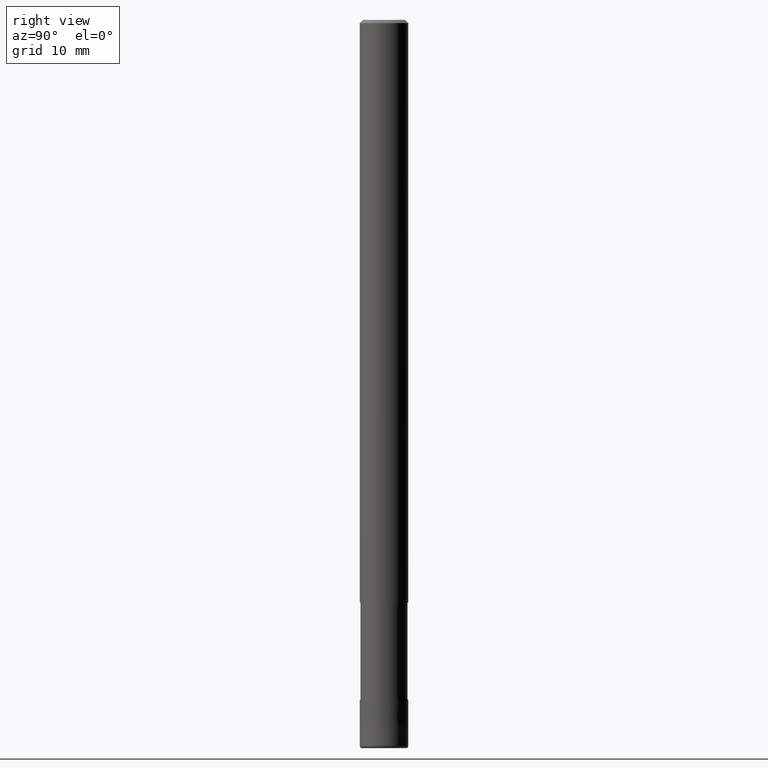
[diagram: clean part render]
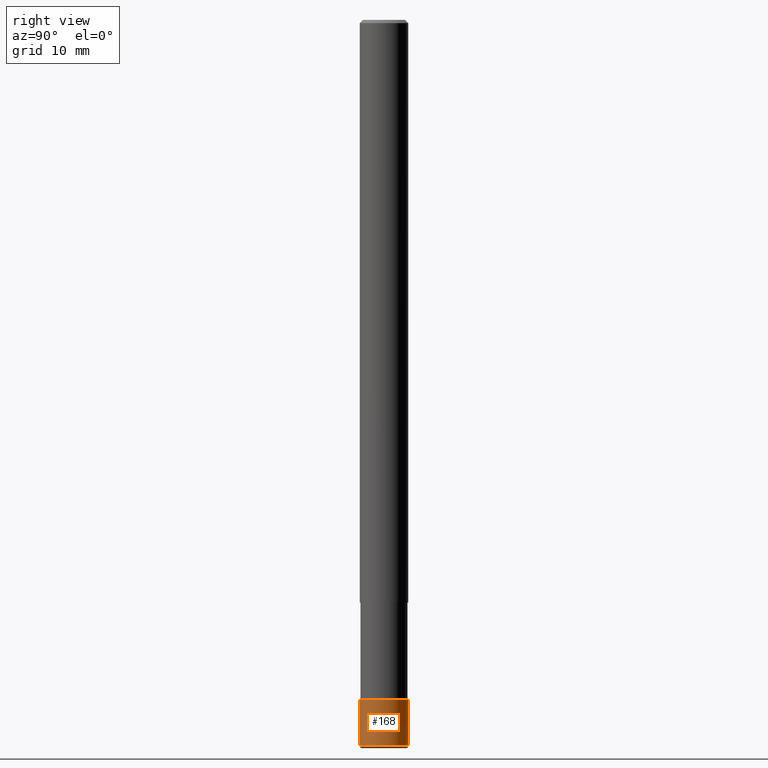
[diagram: same view with one face highlighted and labeled with its STEP entity id]
A machine part, right view. The second image highlights one B-rep face of the part: STEP entity #168.
In plain terms, the highlighted conical surface has half-angle 0.001 deg.
Its self-contained STEP definition (entity closure, byte-faithful):
#100=EDGE_CURVE('',#206,#144,#238,.T.);
#116=EDGE_CURVE('',#164,#206,#259,.T.);
#136=EDGE_CURVE('',#164,#174,#282,.T.);
#144=VERTEX_POINT('',#290);
#164=VERTEX_POINT('',#313);
#168=ADVANCED_FACE('',(#317),#318,.T.);
#174=VERTEX_POINT('',#324);
#196=EDGE_CURVE('',#144,#174,#348,.T.);
#206=VERTEX_POINT('',#358);
#238=CIRCLE('',#385,3.0);
#259=LINE('',#409,#410);
#282=CIRCLE('',#440,2.9999);
#290=CARTESIAN_POINT('',(3.67381906146713E-016,-3.0,-89.7));
#313=CARTESIAN_POINT('',(0.0,2.9999,-84.0));
#317=FACE_OUTER_BOUND('',#482,.T.);
#318=CONICAL_SURFACE('',#483,2.99995,1.75438596473599E-005);
#324=CARTESIAN_POINT('',(3.67369660083175E-016,-2.9999,-84.0));
#348=LINE('',#519,#520);
#358=CARTESIAN_POINT('',(0.0,3.0,-89.7));
#385=AXIS2_PLACEMENT_3D('',#548,#549,#550);
#409=CARTESIAN_POINT('',(-3.67375783114944E-016,2.99995,-86.85));
#410=VECTOR('',#587,1.0);
#440=AXIS2_PLACEMENT_3D('',#623,#624,#625);
#482=EDGE_LOOP('',(#667,#668,#669,#670));
#483=AXIS2_PLACEMENT_3D('',#671,#672,#673);
#519=CARTESIAN_POINT('',(3.67375783114944E-016,-2.99995,-86.85));
#520=VECTOR('',#702,1.0);
#548=CARTESIAN_POINT('',(0.0,0.0,-89.7));
#549=DIRECTION('',(0.0,0.0,-1.0));
#550=DIRECTION('',(0.0,1.0,0.0));
#587=DIRECTION('',(-2.14843219936228E-021,1.75438596464599E-005,-0.999999999846107));
#623=CARTESIAN_POINT('',(0.0,0.0,-84.0));
#624=DIRECTION('',(0.0,0.0,-1.0));
#625=DIRECTION('',(0.0,1.0,0.0));
#667=ORIENTED_EDGE('',*,*,#116,.F.);
#668=ORIENTED_EDGE('',*,*,#136,.T.);
#669=ORIENTED_EDGE('',*,*,#196,.F.);
#670=ORIENTED_EDGE('',*,*,#100,.F.);
#671=CARTESIAN_POINT('',(0.0,0.0,-86.85));
#672=DIRECTION('',(0.0,-0.0,-1.0));
#673=DIRECTION('',(0.0,1.0,0.0));
#702=DIRECTION('',(-2.14843219936229E-021,1.75438596464599E-005,0.999999999846107));